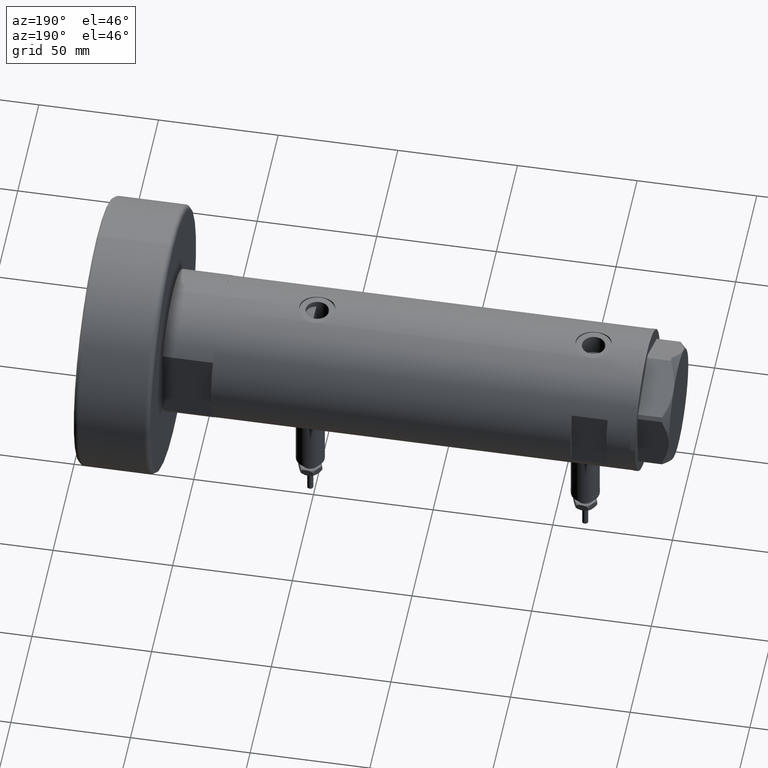
[diagram: clean part render]
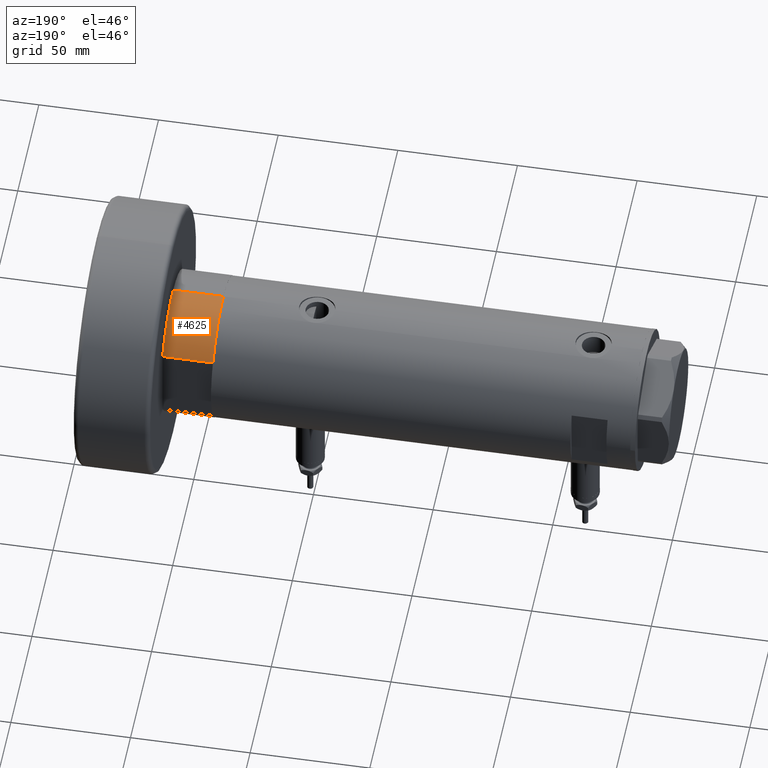
[diagram: same view with one face highlighted and labeled with its STEP entity id]
A machine part, auxiliary view. The second image highlights one B-rep face of the part: STEP entity #4625.
In plain terms, the highlighted cylindrical surface (partial cylindrical patch) has radius 29.5 mm, axis along (-1, -0, 0).
Its self-contained STEP definition (entity closure, byte-faithful):
#73 = EDGE_CURVE ( 'NONE', #3260, #2879, #2549, .T. ) ;
#228 = EDGE_CURVE ( 'NONE', #3260, #4512, #4839, .T. ) ;
#260 = ORIENTED_EDGE ( 'NONE', *, *, #73, .F. ) ;
#279 = CARTESIAN_POINT ( 'NONE',  ( 0.000000000000000000, 0.000000000000000000, 0.000000000000000000 ) ) ;
#540 = EDGE_CURVE ( 'NONE', #4231, #4512, #1978, .T. ) ;
#616 = EDGE_CURVE ( 'NONE', #2879, #4231, #5446, .T. ) ;
#765 = CARTESIAN_POINT ( 'NONE',  ( 0.000000000000000000, 0.000000000000000000, 21.00000000000000000 ) ) ;
#1087 = CARTESIAN_POINT ( 'NONE',  ( -15.66045976336583401, 25.00000000000000000, 0.000000000000000000 ) ) ;
#1183 = DIRECTION ( 'NONE',  ( -1.000000000000000000, 0.000000000000000000, 0.000000000000000000 ) ) ;
#1563 = CARTESIAN_POINT ( 'NONE',  ( -15.66045976336583401, 25.00000000000000000, 0.000000000000000000 ) ) ;
#1725 = DIRECTION ( 'NONE',  ( 1.000000000000000000, 0.000000000000000000, 0.000000000000000000 ) ) ;
#1978 = LINE ( 'NONE', #4957, #3920 ) ;
#2011 = CARTESIAN_POINT ( 'NONE',  ( 0.000000000000000000, 0.000000000000000000, 21.00000000000000000 ) ) ;
#2074 = ORIENTED_EDGE ( 'NONE', *, *, #540, .F. ) ;
#2549 = LINE ( 'NONE', #1563, #3212 ) ;
#2879 = VERTEX_POINT ( 'NONE', #3984 ) ;
#2946 = CARTESIAN_POINT ( 'NONE',  ( -29.50000000000000355, 0.000000000000000000, 21.00000000000000000 ) ) ;
#3058 = DIRECTION ( 'NONE',  ( 1.000000000000000000, 0.000000000000000000, 0.000000000000000000 ) ) ;
#3164 = FACE_OUTER_BOUND ( 'NONE', #4514, .T. ) ;
#3212 = VECTOR ( 'NONE', #4931, 1000.000000000000000 ) ;
#3260 = VERTEX_POINT ( 'NONE', #1087 ) ;
#3715 = ORIENTED_EDGE ( 'NONE', *, *, #616, .F. ) ;
#3725 = CYLINDRICAL_SURFACE ( 'NONE', #4135, 29.50000000000000355 ) ;
#3920 = VECTOR ( 'NONE', #5907, 1000.000000000000000 ) ;
#3937 = DIRECTION ( 'NONE',  ( 0.000000000000000000, 0.000000000000000000, 1.000000000000000000 ) ) ;
#3984 = CARTESIAN_POINT ( 'NONE',  ( -15.66045976336583045, 24.99999999999999645, 21.00000000000000355 ) ) ;
#4044 = CARTESIAN_POINT ( 'NONE',  ( -29.50000000000000355, 0.000000000000000000, 0.000000000000000000 ) ) ;
#4135 = AXIS2_PLACEMENT_3D ( 'NONE', #765, #5187, #1183 ) ;
#4231 = VERTEX_POINT ( 'NONE', #2946 ) ;
#4512 = VERTEX_POINT ( 'NONE', #4044 ) ;
#4514 = EDGE_LOOP ( 'NONE', ( #2074, #3715, #260, #5193 ) ) ;
#4582 = DIRECTION ( 'NONE',  ( 0.000000000000000000, 0.000000000000000000, 1.000000000000000000 ) ) ;
#4625 = ADVANCED_FACE ( 'NONE', ( #3164 ), #3725, .T. ) ;
#4839 = CIRCLE ( 'NONE', #5747, 29.50000000000000355 ) ;
#4931 = DIRECTION ( 'NONE',  ( -0.000000000000000000, -0.000000000000000000, 1.000000000000000000 ) ) ;
#4957 = CARTESIAN_POINT ( 'NONE',  ( -29.50000000000000355, 0.000000000000000000, 21.00000000000000000 ) ) ;
#5187 = DIRECTION ( 'NONE',  ( -0.000000000000000000, -0.000000000000000000, -1.000000000000000000 ) ) ;
#5193 = ORIENTED_EDGE ( 'NONE', *, *, #228, .T. ) ;
#5446 = CIRCLE ( 'NONE', #5552, 29.50000000000000355 ) ;
#5552 = AXIS2_PLACEMENT_3D ( 'NONE', #2011, #3937, #3058 ) ;
#5747 = AXIS2_PLACEMENT_3D ( 'NONE', #279, #4582, #1725 ) ;
#5907 = DIRECTION ( 'NONE',  ( -0.000000000000000000, -0.000000000000000000, -1.000000000000000000 ) ) ;